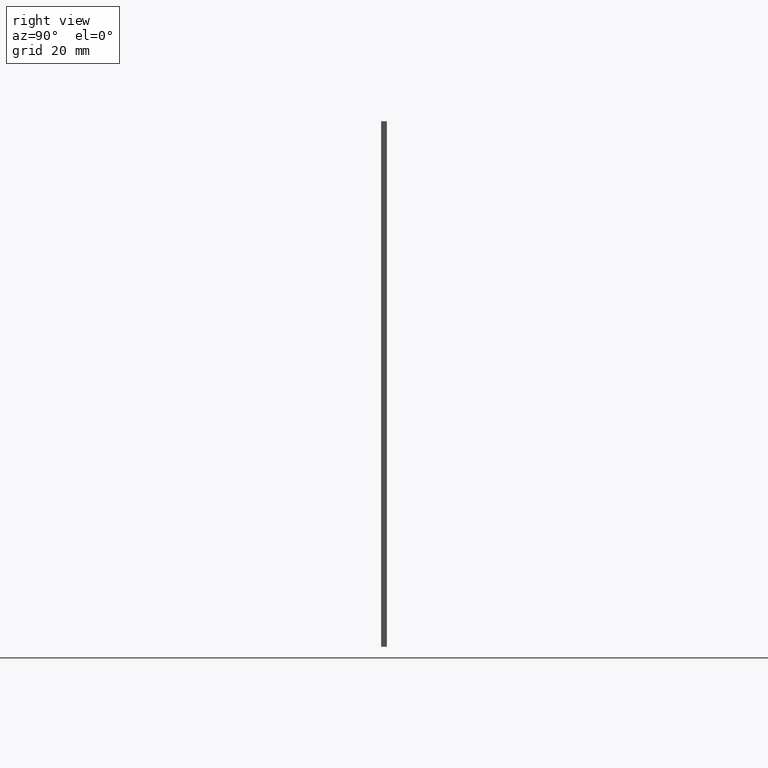
[diagram: clean part render]
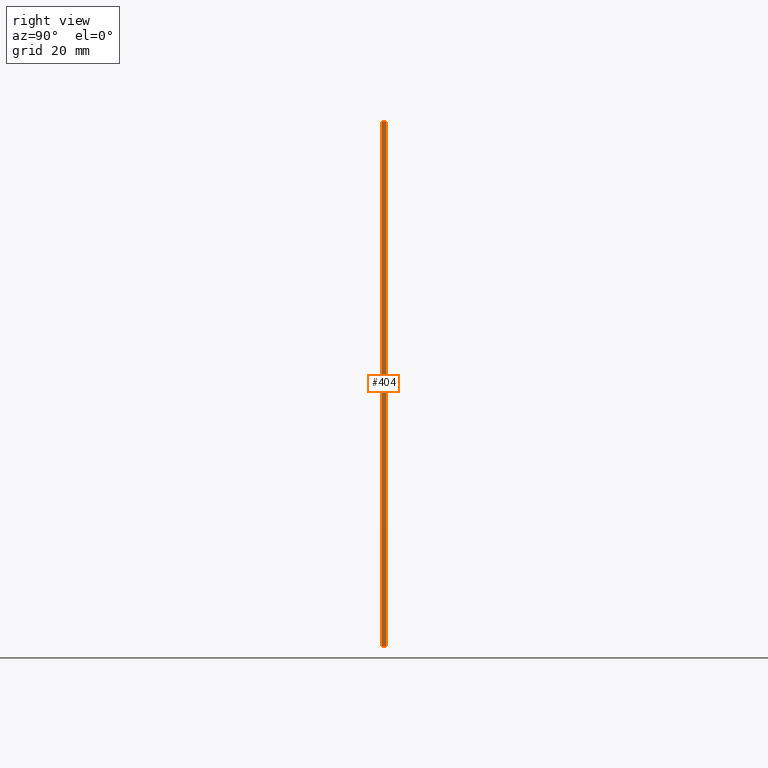
[diagram: same view with one face highlighted and labeled with its STEP entity id]
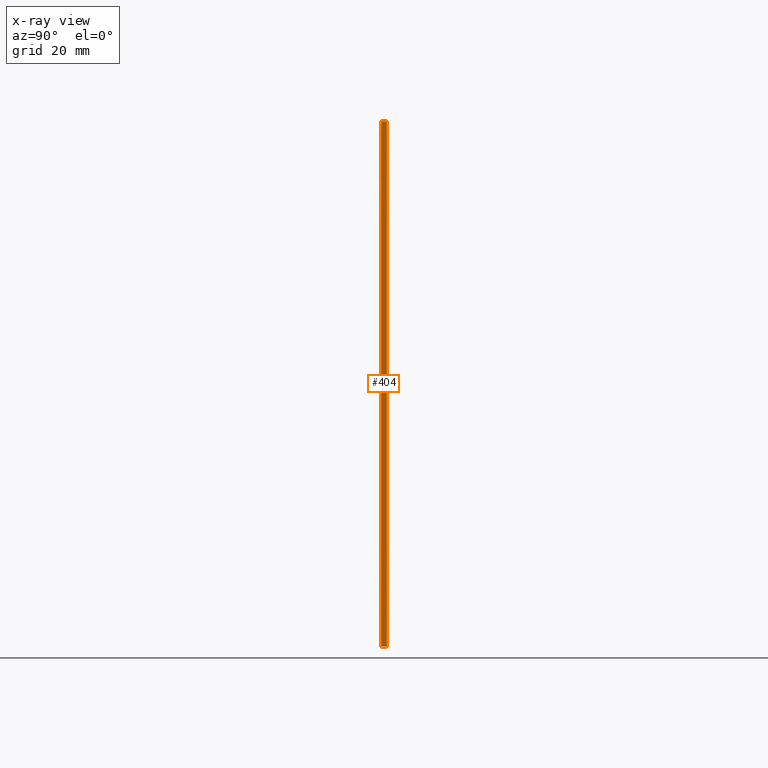
[diagram: x-ray of the same camera — body ghosted, the highlighted face saturated]
A machine part, right view. The second image highlights one B-rep face of the part: STEP entity #404.
The next image is the same camera in x-ray: the body ghosted, the highlighted face saturated — about 0% of this face is hidden behind the body in this view.
In plain terms, the highlighted planar face has unit normal (1, 0, 0).
Its self-contained STEP definition (entity closure, byte-faithful):
#45=PLANE('',#469);
#64=FACE_OUTER_BOUND('',#96,.T.);
#96=EDGE_LOOP('',(#353,#354,#355,#356));
#120=LINE('',#626,#145);
#123=LINE('',#631,#148);
#134=LINE('',#689,#159);
#135=LINE('',#691,#160);
#145=VECTOR('',#510,10.);
#148=VECTOR('',#515,10.);
#159=VECTOR('',#582,10.);
#160=VECTOR('',#585,10.);
#199=VERTEX_POINT('',#623);
#200=VERTEX_POINT('',#625);
#201=VERTEX_POINT('',#629);
#220=VERTEX_POINT('',#687);
#238=EDGE_CURVE('',#199,#200,#120,.T.);
#241=EDGE_CURVE('',#199,#201,#123,.T.);
#270=EDGE_CURVE('',#201,#220,#134,.T.);
#271=EDGE_CURVE('',#200,#220,#135,.T.);
#353=ORIENTED_EDGE('',*,*,#241,.T.);
#354=ORIENTED_EDGE('',*,*,#270,.T.);
#355=ORIENTED_EDGE('',*,*,#271,.F.);
#356=ORIENTED_EDGE('',*,*,#238,.F.);
#404=ADVANCED_FACE('',(#64),#45,.T.);
#469=AXIS2_PLACEMENT_3D('',#690,#583,#584);
#510=DIRECTION('',(0.,1.,0.));
#515=DIRECTION('',(9.2807165320119E-32,0.,-1.));
#582=DIRECTION('',(0.,1.,0.));
#583=DIRECTION('center_axis',(1.,0.,9.2807165320119E-32));
#584=DIRECTION('ref_axis',(9.2807165320119E-32,0.,-1.));
#585=DIRECTION('',(0.,0.,-1.));
#623=CARTESIAN_POINT('',(0.,0.,4.));
#625=CARTESIAN_POINT('',(0.,1.,4.));
#626=CARTESIAN_POINT('',(0.,0.,4.));
#629=CARTESIAN_POINT('',(7.88860905221012E-30,0.,-89.));
#631=CARTESIAN_POINT('',(0.,0.,0.));
#687=CARTESIAN_POINT('',(7.88860905221012E-30,1.,-89.));
#689=CARTESIAN_POINT('',(7.88860905221012E-30,0.,-89.));
#690=CARTESIAN_POINT('Origin',(0.,0.,0.));
#691=CARTESIAN_POINT('',(0.,1.,4.));